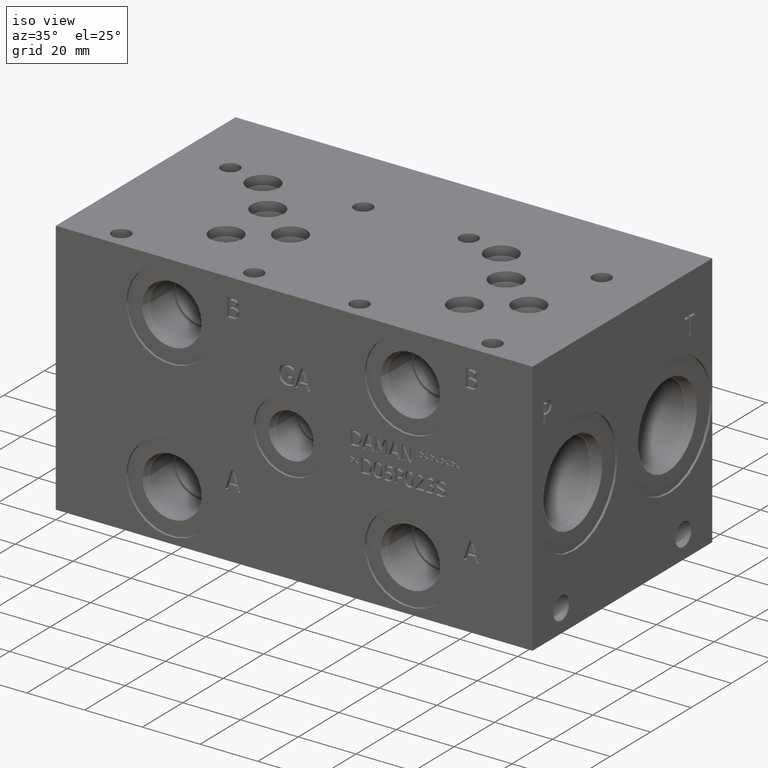
[diagram: clean part render]
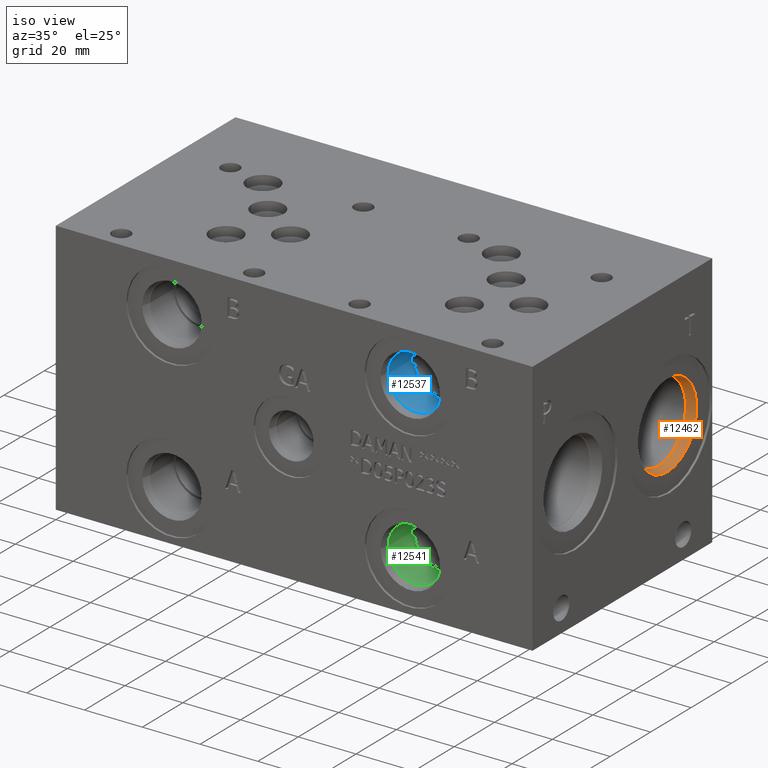
[diagram: same view with three faces highlighted in distinct colors, each labeled with its STEP entity id]
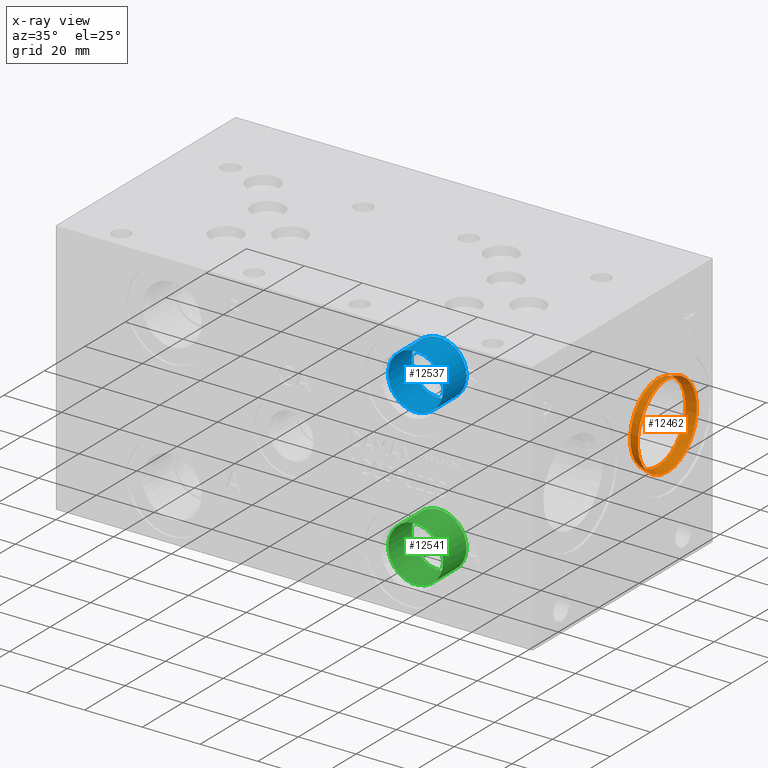
[diagram: x-ray of the same camera — body ghosted, the three highlighted faces saturated]
A machine part, iso view with three faces highlighted in distinct colors.
The next image is the same camera in x-ray (body ghosted, the three faces saturated) — at least one of them is partly hidden behind the body in this view.
Their STEP definitions:

[orange] entity #12462 — the highlighted conical surface has half-angle 15.007 deg.
#99=CONICAL_SURFACE('',#13028,14.15415,0.26192213729776);
#212=CIRCLE('',#13026,14.5923);
#213=CIRCLE('',#13027,14.5923);
#214=CIRCLE('',#13029,13.716);
#215=CIRCLE('',#13030,13.716);
#1403=FACE_OUTER_BOUND('',#2117,.T.);
#2117=EDGE_LOOP('',(#10602,#10603,#10604,#10605,#10606,#10607));
#3309=LINE('',#21094,#4435);
#4435=VECTOR('',#15233,14.15415);
#5830=VERTEX_POINT('',#21088);
#5831=VERTEX_POINT('',#21089);
#5832=VERTEX_POINT('',#21093);
#5833=VERTEX_POINT('',#21095);
#7488=EDGE_CURVE('',#5830,#5831,#212,.T.);
#7489=EDGE_CURVE('',#5831,#5830,#213,.T.);
#7490=EDGE_CURVE('',#5831,#5832,#3309,.T.);
#7491=EDGE_CURVE('',#5832,#5833,#214,.T.);
#7492=EDGE_CURVE('',#5833,#5832,#215,.T.);
#10602=ORIENTED_EDGE('',*,*,#7488,.F.);
#10603=ORIENTED_EDGE('',*,*,#7489,.F.);
#10604=ORIENTED_EDGE('',*,*,#7490,.T.);
#10605=ORIENTED_EDGE('',*,*,#7491,.T.);
#10606=ORIENTED_EDGE('',*,*,#7492,.T.);
#10607=ORIENTED_EDGE('',*,*,#7490,.F.);
#12462=ADVANCED_FACE('',(#1403),#99,.F.);
#13026=AXIS2_PLACEMENT_3D('',#21090,#15227,#15228);
#13027=AXIS2_PLACEMENT_3D('',#21091,#15229,#15230);
#13028=AXIS2_PLACEMENT_3D('',#21092,#15231,#15232);
#13029=AXIS2_PLACEMENT_3D('',#21096,#15234,#15235);
#13030=AXIS2_PLACEMENT_3D('',#21097,#15236,#15237);
#15227=DIRECTION('center_axis',(-1.,0.,0.));
#15228=DIRECTION('ref_axis',(0.,0.,1.));
#15229=DIRECTION('center_axis',(-1.,0.,0.));
#15230=DIRECTION('ref_axis',(0.,0.,1.));
#15231=DIRECTION('center_axis',(1.,0.,0.));
#15232=DIRECTION('ref_axis',(0.,0.,-1.));
#15233=DIRECTION('',(-0.965894049104116,-3.17107115342794E-17,-0.258937610063225));
#15234=DIRECTION('center_axis',(-1.,0.,0.));
#15235=DIRECTION('ref_axis',(0.,0.,1.));
#15236=DIRECTION('center_axis',(-1.,0.,0.));
#15237=DIRECTION('ref_axis',(0.,0.,1.));
#21088=CARTESIAN_POINT('',(164.3126,67.818,29.8577));
#21089=CARTESIAN_POINT('',(164.3126,67.818,59.0423));
#21090=CARTESIAN_POINT('Origin',(164.3126,67.818,44.45));
#21091=CARTESIAN_POINT('Origin',(164.3126,67.818,44.45));
#21092=CARTESIAN_POINT('Origin',(162.67820445,67.818,44.45));
#21093=CARTESIAN_POINT('',(161.0438089,67.818,58.166));
#21094=CARTESIAN_POINT('',(162.67820445,67.818,58.60415));
#21095=CARTESIAN_POINT('',(161.0438089,67.818,30.734));
#21096=CARTESIAN_POINT('Origin',(161.0438089,67.818,44.45));
#21097=CARTESIAN_POINT('Origin',(161.0438089,67.818,44.45));

[blue] entity #12537 — the highlighted cylindrical surface (bore or boss wall) has radius 9.525 mm, axis along (0, -1, 0).
#61=CYLINDRICAL_SURFACE('',#13226,9.525);
#308=CIRCLE('',#13179,9.525);
#334=CIRCLE('',#13223,9.525);
#335=CIRCLE('',#13224,9.525);
#1478=FACE_OUTER_BOUND('',#2205,.T.);
#2205=EDGE_LOOP('',(#10977,#10978,#10979,#10980,#10981));
#3371=LINE('',#21484,#4497);
#4497=VECTOR('',#15691,9.525);
#5930=VERTEX_POINT('',#21387);
#5960=VERTEX_POINT('',#21477);
#5961=VERTEX_POINT('',#21478);
#7631=EDGE_CURVE('',#5930,#5930,#308,.T.);
#7672=EDGE_CURVE('',#5960,#5961,#334,.T.);
#7673=EDGE_CURVE('',#5961,#5960,#335,.T.);
#7675=EDGE_CURVE('',#5930,#5961,#3371,.T.);
#10977=ORIENTED_EDGE('',*,*,#7631,.T.);
#10978=ORIENTED_EDGE('',*,*,#7675,.T.);
#10979=ORIENTED_EDGE('',*,*,#7672,.F.);
#10980=ORIENTED_EDGE('',*,*,#7673,.F.);
#10981=ORIENTED_EDGE('',*,*,#7675,.F.);
#12537=ADVANCED_FACE('',(#1478),#61,.F.);
#13179=AXIS2_PLACEMENT_3D('',#21389,#15580,#15581);
#13223=AXIS2_PLACEMENT_3D('',#21479,#15683,#15684);
#13224=AXIS2_PLACEMENT_3D('',#21480,#15685,#15686);
#13226=AXIS2_PLACEMENT_3D('',#21483,#15689,#15690);
#15580=DIRECTION('center_axis',(0.,-1.,0.));
#15581=DIRECTION('ref_axis',(1.,0.,0.));
#15683=DIRECTION('center_axis',(0.,-1.,0.));
#15684=DIRECTION('ref_axis',(1.,0.,0.));
#15685=DIRECTION('center_axis',(0.,-1.,0.));
#15686=DIRECTION('ref_axis',(1.,0.,0.));
#15689=DIRECTION('center_axis',(0.,-1.,0.));
#15690=DIRECTION('ref_axis',(1.,0.,0.));
#15691=DIRECTION('',(0.,1.,0.));
#21387=CARTESIAN_POINT('',(112.6998,3.4036,71.4248));
#21389=CARTESIAN_POINT('Origin',(122.2248,3.4036,71.4248));
#21477=CARTESIAN_POINT('',(131.7498,15.0622,71.4248));
#21478=CARTESIAN_POINT('',(112.6998,15.0622,71.4248));
#21479=CARTESIAN_POINT('Origin',(122.2248,15.0622,71.4248));
#21480=CARTESIAN_POINT('Origin',(122.2248,15.0622,71.4248));
#21483=CARTESIAN_POINT('Origin',(122.2248,7.5311,71.4248));
#21484=CARTESIAN_POINT('',(112.6998,7.5311,71.4248));

[green] entity #12541 — the highlighted cylindrical surface (bore or boss wall) has radius 9.525 mm, axis along (0, -1, 0).
#63=CYLINDRICAL_SURFACE('',#13235,9.525);
#290=CIRCLE('',#13151,9.525);
#339=CIRCLE('',#13232,9.525);
#340=CIRCLE('',#13233,9.525);
#1482=FACE_OUTER_BOUND('',#2210,.T.);
#2210=EDGE_LOOP('',(#10995,#10996,#10997,#10998,#10999));
#3374=LINE('',#21501,#4500);
#4500=VECTOR('',#15712,9.525);
#5912=VERTEX_POINT('',#21333);
#5965=VERTEX_POINT('',#21494);
#5966=VERTEX_POINT('',#21495);
#7605=EDGE_CURVE('',#5912,#5912,#290,.T.);
#7680=EDGE_CURVE('',#5965,#5966,#339,.T.);
#7681=EDGE_CURVE('',#5966,#5965,#340,.T.);
#7683=EDGE_CURVE('',#5912,#5966,#3374,.T.);
#10995=ORIENTED_EDGE('',*,*,#7605,.T.);
#10996=ORIENTED_EDGE('',*,*,#7683,.T.);
#10997=ORIENTED_EDGE('',*,*,#7680,.F.);
#10998=ORIENTED_EDGE('',*,*,#7681,.F.);
#10999=ORIENTED_EDGE('',*,*,#7683,.F.);
#12541=ADVANCED_FACE('',(#1482),#63,.F.);
#13151=AXIS2_PLACEMENT_3D('',#21335,#15516,#15517);
#13232=AXIS2_PLACEMENT_3D('',#21496,#15704,#15705);
#13233=AXIS2_PLACEMENT_3D('',#21497,#15706,#15707);
#13235=AXIS2_PLACEMENT_3D('',#21500,#15710,#15711);
#15516=DIRECTION('center_axis',(0.,-1.,0.));
#15517=DIRECTION('ref_axis',(1.,0.,0.));
#15704=DIRECTION('center_axis',(0.,-1.,0.));
#15705=DIRECTION('ref_axis',(1.,0.,0.));
#15706=DIRECTION('center_axis',(0.,-1.,0.));
#15707=DIRECTION('ref_axis',(1.,0.,0.));
#15710=DIRECTION('center_axis',(0.,-1.,0.));
#15711=DIRECTION('ref_axis',(1.,0.,0.));
#15712=DIRECTION('',(0.,1.,0.));
#21333=CARTESIAN_POINT('',(112.6998,3.4036,17.4752));
#21335=CARTESIAN_POINT('Origin',(122.2248,3.4036,17.4752));
#21494=CARTESIAN_POINT('',(131.7498,15.0622,17.4752));
#21495=CARTESIAN_POINT('',(112.6998,15.0622,17.4752));
#21496=CARTESIAN_POINT('Origin',(122.2248,15.0622,17.4752));
#21497=CARTESIAN_POINT('Origin',(122.2248,15.0622,17.4752));
#21500=CARTESIAN_POINT('Origin',(122.2248,7.5311,17.4752));
#21501=CARTESIAN_POINT('',(112.6998,7.5311,17.4752));